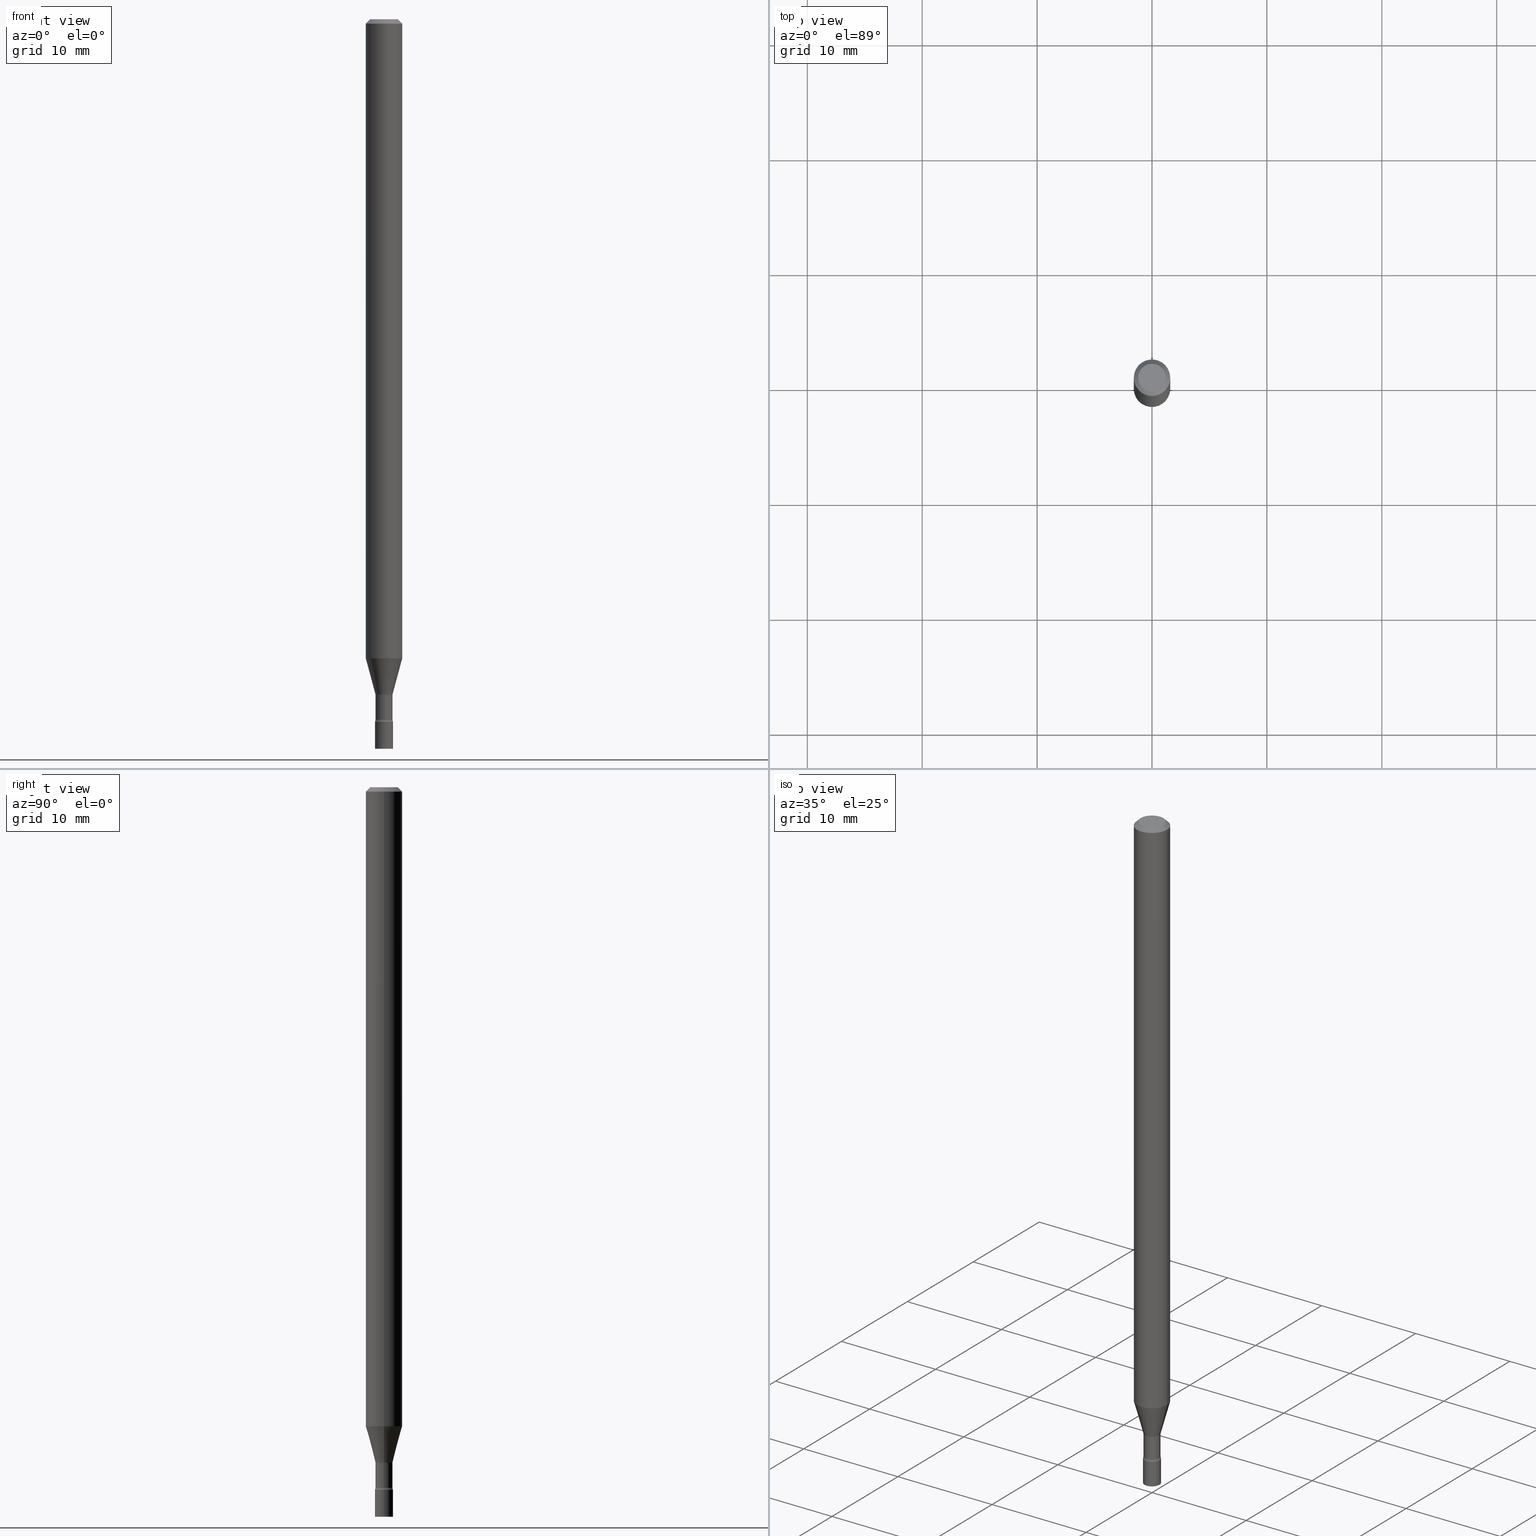
[diagram: canonical four-view strip — front | top / right | iso, engineering-drawing reading convention]
A machine part, canonical four-view strip (front | top / right | iso — engineering-drawing reading convention). The complete STEP part file that produces these views, byte-faithful:
ISO-10303-21;
HEADER;
FILE_DESCRIPTION (( 'STEP AP203' ),
    '1' );
FILE_NAME ('09690.STEP',
    '2024-03-09T00:51:56',
    ( '' ),
    ( '' ),
    'SwSTEP 2.0',
    'SolidWorks 2023',
    '' );
FILE_SCHEMA (( 'CONFIG_CONTROL_DESIGN' ));
ENDSEC;

DATA;
#1 = ORIENTED_EDGE ( 'NONE', *, *, #197, .T. ) ;
#2 = TOROIDAL_SURFACE ( 'NONE', #269, 0.04415000000000000174, 0.01499999999999999424 ) ;
#3 = EDGE_CURVE ( 'NONE', #322, #279, #195, .T. ) ;
#4 = ORIENTED_EDGE ( 'NONE', *, *, #159, .T. ) ;
#5 =( LENGTH_UNIT ( ) NAMED_UNIT ( * ) SI_UNIT ( $, .METRE. ) );
#6 = ORIENTED_EDGE ( 'NONE', *, *, #403, .F. ) ;
#7 = CARTESIAN_POINT ( 'NONE',  ( 0.03099999999999999978, -8.945175190116139274E-15, -2.500000000000000000 ) ) ;
#8 = CARTESIAN_POINT ( 'NONE',  ( 3.668203209277712094E-31, -5.237222008264728876E-17, -0.01500000000000003067 ) ) ;
#9 = CIRCLE ( 'NONE', #351, 0.06250000000000000000 ) ;
#10 = DIRECTION ( 'NONE',  ( 1.000000000000000000, -6.982962677686266711E-15, 4.876176775795935793E-29 ) ) ;
#11 = AXIS2_PLACEMENT_3D ( 'NONE', #433, #355, #459 ) ;
#12 = CARTESIAN_POINT ( 'NONE',  ( 0.06250000000000000000, -4.888073874380389458E-16, -0.01500000000000003067 ) ) ;
#13 = FACE_OUTER_BOUND ( 'NONE', #397, .T. ) ;
#14 = AXIS2_PLACEMENT_3D ( 'NONE', #320, #39, #398 ) ;
#15 = FACE_OUTER_BOUND ( 'NONE', #359, .T. ) ;
#16 = DIRECTION ( 'NONE',  ( -2.445468806185136597E-29, 3.491481338843145583E-15, 1.000000000000000000 ) ) ;
#17 = COORDINATED_UNIVERSAL_TIME_OFFSET ( 5, 0, .BEHIND. ) ;
#18 = LINE ( 'NONE', #449, #417 ) ;
#19 = FACE_OUTER_BOUND ( 'NONE', #85, .T. ) ;
#20 = EDGE_CURVE ( 'NONE', #44, #68, #303, .T. ) ;
#21 = FACE_OUTER_BOUND ( 'NONE', #487, .T. ) ;
#22 = PLANE ( 'NONE',  #11 ) ;
#23 = PERSON_AND_ORGANIZATION_ROLE ( 'design_supplier' ) ;
#24 = CARTESIAN_POINT ( 'NONE',  ( 5.654150090135328854E-29, -8.072627823669426720E-15, -2.312092501787272880 ) ) ;
#25 = ORIENTED_EDGE ( 'NONE', *, *, #147, .T. ) ;
#26 = CARTESIAN_POINT ( 'NONE',  ( -0.06250000000000000000, -7.200635243462433046E-15, -2.189536105567578161 ) ) ;
#27 = AXIS2_PLACEMENT_3D ( 'NONE', #215, #16, #447 ) ;
#28 = VECTOR ( 'NONE', #349, 39.37007874015748143 ) ;
#29 = CARTESIAN_POINT ( 'NONE',  ( -0.02915000000000000230, 2.071232074740692205E-16, -1.433869578809305304E-30 ) ) ;
#30 = ORIENTED_EDGE ( 'NONE', *, *, #341, .F. ) ;
#31 = EDGE_CURVE ( 'NONE', #518, #132, #506, .T. ) ;
#32 = DIRECTION ( 'NONE',  ( -2.445468806185136597E-29, 3.491481338843145583E-15, 1.000000000000000000 ) ) ;
#33 = ORIENTED_EDGE ( 'NONE', *, *, #309, .T. ) ;
#34 = AXIS2_PLACEMENT_3D ( 'NONE', #97, #135, #94 ) ;
#35 = VECTOR ( 'NONE', #388, 39.37007874015748143 ) ;
#36 = SECURITY_CLASSIFICATION ( '', '', #185 ) ;
#37 = VERTEX_POINT ( 'NONE', #56 ) ;
#38 = VERTEX_POINT ( 'NONE', #12 ) ;
#39 = DIRECTION ( 'NONE',  ( -2.438088387897960049E-29, 3.491481338843145188E-15, 1.000000000000000000 ) ) ;
#40 = ORIENTED_EDGE ( 'NONE', *, *, #3, .T. ) ;
#41 = ORIENTED_EDGE ( 'NONE', *, *, #297, .T. ) ;
#42 = APPLICATION_PROTOCOL_DEFINITION ( 'international standard', 'config_control_design', 1994, #304 ) ;
#43 = EDGE_CURVE ( 'NONE', #232, #322, #414, .T. ) ;
#44 = VERTEX_POINT ( 'NONE', #252 ) ;
#45 = EDGE_CURVE ( 'NONE', #513, #372, #113, .T. ) ;
#46 = DIRECTION ( 'NONE',  ( -2.445468806185136597E-29, 3.491481338843145583E-15, 1.000000000000000000 ) ) ;
#47 = ORIENTED_EDGE ( 'NONE', *, *, #516, .T. ) ;
#48 = AXIS2_PLACEMENT_3D ( 'NONE', #105, #260, #429 ) ;
#49 = DIRECTION ( 'NONE',  ( 1.000000000000000000, -6.982962677686270655E-15, 0.000000000000000000 ) ) ;
#50 = CARTESIAN_POINT ( 'NONE',  ( -0.03099999999999999978, 2.202682480856310560E-16, -1.524869877979020612E-30 ) ) ;
#51 = PERSON_AND_ORGANIZATION ( #470, #354 ) ;
#52 = DIRECTION ( 'NONE',  ( 1.000000000000000000, -6.982962677686262766E-15, 0.000000000000000000 ) ) ;
#53 = PLANE ( 'NONE',  #445 ) ;
#54 = DATE_AND_TIME ( #448, #115 ) ;
#55 = CARTESIAN_POINT ( 'NONE',  ( 5.886243416487624138E-29, -8.403995582595452657E-15, -2.407000000000000473 ) ) ;
#56 = CARTESIAN_POINT ( 'NONE',  ( -0.02966111260566397720, -7.531254093083343617E-15, -2.312092501787272880 ) ) ;
#57 = CIRCLE ( 'NONE', #34, 0.03099999999999999978 ) ;
#58 = CARTESIAN_POINT ( 'NONE',  ( 0.04415000000000000174, -8.687097199784551836E-15, -2.399783525791635341 ) ) ;
#59 = CC_DESIGN_APPROVAL ( #273, ( #36 ) ) ;
#60 = CYLINDRICAL_SURFACE ( 'NONE', #27, 0.03099999999999999978 ) ;
#61 = DIRECTION ( 'NONE',  ( 1.000000000000000000, -6.982962677686270655E-15, 0.000000000000000000 ) ) ;
#62 = ADVANCED_FACE ( 'NONE', ( #13 ), #412, .F. ) ;
#63 = DIRECTION ( 'NONE',  ( 1.000000000000000000, -6.982962677686259611E-15, 0.000000000000000000 ) ) ;
#64 = CARTESIAN_POINT ( 'NONE',  ( 5.663644098654001597E-29, -8.086182751661116518E-15, -2.315974787463810802 ) ) ;
#65 = AXIS2_PLACEMENT_3D ( 'NONE', #499, #139, #247 ) ;
#66 = CARTESIAN_POINT ( 'NONE',  ( 3.668203209277712094E-31, -5.237222008264728876E-17, -0.01500000000000003067 ) ) ;
#67 = CARTESIAN_POINT ( 'NONE',  ( -0.04749999999999999362, 3.578768372314209027E-16, -2.891391092787141902E-17 ) ) ;
#68 = VERTEX_POINT ( 'NONE', #125 ) ;
#69 = ADVANCED_FACE ( 'NONE', ( #86 ), #53, .T. ) ;
#70 = PERSON_AND_ORGANIZATION ( #470, #354 ) ;
#71 = DIRECTION ( 'NONE',  ( -1.000000000000000000, 6.982962677686266711E-15, 0.000000000000000000 ) ) ;
#72 = DIRECTION ( 'NONE',  ( -2.445468806185136597E-29, 3.491481338843145583E-15, 1.000000000000000000 ) ) ;
#73 = PERSON_AND_ORGANIZATION ( #470, #354 ) ;
#74 = AXIS2_PLACEMENT_3D ( 'NONE', #187, #230, #183 ) ;
#75 = CARTESIAN_POINT ( 'NONE',  ( 0.02966111260566397720, -8.279750265973427972E-15, -2.312092501787272880 ) ) ;
#76 = ADVANCED_FACE ( 'NONE', ( #380 ), #60, .T. ) ;
#77 = ORIENTED_EDGE ( 'NONE', *, *, #173, .F. ) ;
#78 = DIRECTION ( 'NONE',  ( -2.445468806185136597E-29, 3.491481338843145583E-15, 1.000000000000000000 ) ) ;
#79 = AXIS2_PLACEMENT_3D ( 'NONE', #24, #32, #233 ) ;
#80 = ORIENTED_EDGE ( 'NONE', *, *, #271, .F. ) ;
#81 = AXIS2_PLACEMENT_3D ( 'NONE', #223, #72, #179 ) ;
#82 = ORIENTED_EDGE ( 'NONE', *, *, #156, .T. ) ;
#83 = EDGE_CURVE ( 'NONE', #372, #371, #93, .T. ) ;
#84 = ORIENTED_EDGE ( 'NONE', *, *, #43, .F. ) ;
#85 = EDGE_LOOP ( 'NONE', ( #477, #478, #466, #442 ) ) ;
#86 = FACE_OUTER_BOUND ( 'NONE', #198, .T. ) ;
#87 = ORIENTED_EDGE ( 'NONE', *, *, #43, .T. ) ;
#88 = AXIS2_PLACEMENT_3D ( 'NONE', #291, #379, #63 ) ;
#89 = ORIENTED_EDGE ( 'NONE', *, *, #258, .T. ) ;
#90 = DIRECTION ( 'NONE',  ( -2.445468806185136597E-29, 3.491481338843145583E-15, 1.000000000000000000 ) ) ;
#91 = ADVANCED_FACE ( 'NONE', ( #377 ), #286, .F. ) ;
#92 = CARTESIAN_POINT ( 'NONE',  ( 5.886243416487624138E-29, -8.403995582595452657E-15, -2.407000000000000473 ) ) ;
#93 = LINE ( 'NONE', #208, #289 ) ;
#94 = DIRECTION ( 'NONE',  ( 1.000000000000000000, -6.982962677686270655E-15, 0.000000000000000000 ) ) ;
#95 = PERSON_AND_ORGANIZATION_ROLE ( 'creator' ) ;
#96 = DIRECTION ( 'NONE',  ( -2.445468806185136597E-29, 3.491481338843145583E-15, 1.000000000000000000 ) ) ;
#97 = CARTESIAN_POINT ( 'NONE',  ( 6.113672015462842613E-29, -8.728703347107864943E-15, -2.500000000000000000 ) ) ;
#98 = CONICAL_SURFACE ( 'NONE', #310, 0.02966111260566397720, 0.2617993877991501295 ) ;
#99 = EDGE_CURVE ( 'NONE', #38, #371, #427, .T. ) ;
#100 = PRODUCT_RELATED_PRODUCT_CATEGORY ( 'detail', '', ( #275 ) ) ;
#101 = LINE ( 'NONE', #140, #244 ) ;
#102 = LINE ( 'NONE', #312, #28 ) ;
#103 = DATE_AND_TIME ( #460, #151 ) ;
#104 = VECTOR ( 'NONE', #253, 39.37007874015747433 ) ;
#105 = CARTESIAN_POINT ( 'NONE',  ( 0.000000000000000000, 0.000000000000000000, 0.000000000000000000 ) ) ;
#106 = ADVANCED_FACE ( 'NONE', ( #453 ), #339, .T. ) ;
#107 = ORIENTED_EDGE ( 'NONE', *, *, #360, .T. ) ;
#108 = APPROVAL_PERSON_ORGANIZATION ( #428, #273, #503 ) ;
#109 = CARTESIAN_POINT ( 'NONE',  ( 5.868595753920427457E-29, -8.378799397564700895E-15, -2.399783525791634897 ) ) ;
#110 = CARTESIAN_POINT ( 'NONE',  ( 5.654150090135328854E-29, -8.072627823669426720E-15, -2.312092501787272880 ) ) ;
#111 = PERSON_AND_ORGANIZATION_ROLE ( 'creator' ) ;
#112 = DIRECTION ( 'NONE',  ( -2.445468806185136597E-29, 3.491481338843145583E-15, 1.000000000000000000 ) ) ;
#113 = CIRCLE ( 'NONE', #254, 0.06250000000000000000 ) ;
#114 = EDGE_CURVE ( 'NONE', #279, #322, #316, .T. ) ;
#115 = LOCAL_TIME ( 19, 51, 56.00000000000000000, #249 ) ;
#116 = ORIENTED_EDGE ( 'NONE', *, *, #3, .F. ) ;
#117 = ORIENTED_EDGE ( 'NONE', *, *, #45, .T. ) ;
#118 = ORIENTED_EDGE ( 'NONE', *, *, #516, .F. ) ;
#119 = CIRCLE ( 'NONE', #149, 0.02966111260566397720 ) ;
#120 = FACE_OUTER_BOUND ( 'NONE', #346, .T. ) ;
#121 = APPROVAL_PERSON_ORGANIZATION ( #152, #161, #262 ) ;
#122 = ORIENTED_EDGE ( 'NONE', *, *, #309, .F. ) ;
#123 = CONICAL_SURFACE ( 'NONE', #79, 0.02966111260566397720, 0.2617993877991501295 ) ;
#124 = ORIENTED_EDGE ( 'NONE', *, *, #45, .F. ) ;
#125 = CARTESIAN_POINT ( 'NONE',  ( 0.02915000000000000577, -8.582352759619256888E-15, -2.399783525791634897 ) ) ;
#126 =( CONVERSION_BASED_UNIT ( 'INCH', #441 ) LENGTH_UNIT ( ) NAMED_UNIT ( #376 ) );
#127 = EDGE_LOOP ( 'NONE', ( #117, #160, #238, #30 ) ) ;
#128 = CARTESIAN_POINT ( 'NONE',  ( 5.868595753920427457E-29, -8.378799397564700895E-15, -2.399783525791634897 ) ) ;
#129 = PLANE ( 'NONE',  #14 ) ;
#130 = DIRECTION ( 'NONE',  ( 0.7071067811865475727, -7.319954787623256045E-15, -0.7071067811865474617 ) ) ;
#131 = CIRCLE ( 'NONE', #196, 0.01500000000000001853 ) ;
#132 = VERTEX_POINT ( 'NONE', #415 ) ;
#133 = DIRECTION ( 'NONE',  ( 0.000000000000000000, 0.000000000000000000, 1.000000000000000000 ) ) ;
#134 = AXIS2_PLACEMENT_3D ( 'NONE', #170, #280, #333 ) ;
#135 = DIRECTION ( 'NONE',  ( -2.445468806185136597E-29, 3.491481338843145583E-15, 1.000000000000000000 ) ) ;
#136 = CARTESIAN_POINT ( 'NONE',  ( 5.654150090135328854E-29, -8.072627823669426720E-15, -2.312092501787272880 ) ) ;
#137 = CARTESIAN_POINT ( 'NONE',  ( 5.354442246181599282E-29, -7.644724453312494084E-15, -2.189536105567578161 ) ) ;
#138 = DIRECTION ( 'NONE',  ( -2.445468806185136597E-29, 3.491481338843145583E-15, 1.000000000000000000 ) ) ;
#139 = DIRECTION ( 'NONE',  ( -2.445468806185136597E-29, 3.491481338843145583E-15, 1.000000000000000000 ) ) ;
#140 = CARTESIAN_POINT ( 'NONE',  ( 0.03099999999999999978, -2.164718430082742572E-16, 1.511614800496739984E-30 ) ) ;
#141 = AXIS2_PLACEMENT_3D ( 'NONE', #154, #395, #267 ) ;
#142 = PERSON_AND_ORGANIZATION ( #470, #354 ) ;
#143 = CARTESIAN_POINT ( 'NONE',  ( -0.03099999999999999978, -8.346081216766027547E-15, -2.407000000000000473 ) ) ;
#144 = DATE_TIME_ROLE ( 'creation_date' ) ;
#145 = EDGE_CURVE ( 'NONE', #37, #406, #119, .T. ) ;
#146 = CARTESIAN_POINT ( 'NONE',  ( 7.070806723891919892E-46, -1.009523804376275404E-31, -2.891391092786900929E-17 ) ) ;
#147 = EDGE_CURVE ( 'NONE', #132, #518, #261, .T. ) ;
#148 = SHAPE_DEFINITION_REPRESENTATION ( #270, #299 ) ;
#149 = AXIS2_PLACEMENT_3D ( 'NONE', #136, #96, #250 ) ;
#150 = DIRECTION ( 'NONE',  ( 1.000000000000000000, -6.982962677686269077E-15, 0.000000000000000000 ) ) ;
#151 = LOCAL_TIME ( 19, 51, 56.00000000000000000, #347 ) ;
#152 = PERSON_AND_ORGANIZATION ( #470, #354 ) ;
#153 = CIRCLE ( 'NONE', #180, 0.04749999999999999362 ) ;
#154 = CARTESIAN_POINT ( 'NONE',  ( 5.663644098654001597E-29, -8.086182751661116518E-15, -2.315974787463810802 ) ) ;
#155 = DIRECTION ( 'NONE',  ( -2.445468806185136877E-29, 3.491481338843145188E-15, 1.000000000000000000 ) ) ;
#156 = EDGE_CURVE ( 'NONE', #37, #184, #131, .T. ) ;
#157 = ORIENTED_EDGE ( 'NONE', *, *, #145, .T. ) ;
#158 = ORIENTED_EDGE ( 'NONE', *, *, #425, .T. ) ;
#159 = EDGE_CURVE ( 'NONE', #406, #365, #426, .T. ) ;
#160 = ORIENTED_EDGE ( 'NONE', *, *, #83, .T. ) ;
#161 = APPROVAL ( #431, 'UNSPECIFIED' ) ;
#162 = ORIENTED_EDGE ( 'NONE', *, *, #145, .F. ) ;
#163 = ORIENTED_EDGE ( 'NONE', *, *, #456, .T. ) ;
#164 = DIRECTION ( 'NONE',  ( 1.000000000000000000, -6.982962677686270655E-15, 0.000000000000000000 ) ) ;
#165 = EDGE_LOOP ( 'NONE', ( #122, #458, #163, #6 ) ) ;
#166 = CARTESIAN_POINT ( 'NONE',  ( 0.000000000000000000, 0.000000000000000000, 0.000000000000000000 ) ) ;
#167 = ADVANCED_FACE ( 'NONE', ( #15 ), #421, .T. ) ;
#168 = DIRECTION ( 'NONE',  ( -0.2588190451025214611, 5.211531920934551042E-15, 0.9659258262890682012 ) ) ;
#169 = AXIS2_PLACEMENT_3D ( 'NONE', #285, #500, #416 ) ;
#170 = CARTESIAN_POINT ( 'NONE',  ( 5.663644098654001597E-29, -8.086182751661116518E-15, -2.315974787463810802 ) ) ;
#171 = AXIS2_PLACEMENT_3D ( 'NONE', #109, #394, #435 ) ;
#172 = CIRCLE ( 'NONE', #295, 0.03099999999999999978 ) ;
#173 = EDGE_CURVE ( 'NONE', #232, #243, #57, .T. ) ;
#174 = DIRECTION ( 'NONE',  ( 2.445468806185136597E-29, -3.491481338843145583E-15, -1.000000000000000000 ) ) ;
#175 = CC_DESIGN_PERSON_AND_ORGANIZATION_ASSIGNMENT ( #70, #111, ( #277 ) ) ;
#176 = DIRECTION ( 'NONE',  ( -2.445468806185136597E-29, 3.491481338843145583E-15, 1.000000000000000000 ) ) ;
#177 = CARTESIAN_POINT ( 'NONE',  ( 3.668203209277712094E-31, -5.237222008264728876E-17, -0.01500000000000003067 ) ) ;
#178 = AXIS2_PLACEMENT_3D ( 'NONE', #245, #411, #49 ) ;
#179 = DIRECTION ( 'NONE',  ( 1.000000000000000000, -6.982962677686266711E-15, 4.876176775795936353E-29 ) ) ;
#180 = AXIS2_PLACEMENT_3D ( 'NONE', #146, #501, #457 ) ;
#181 = CALENDAR_DATE ( 2024, 8, 3 ) ;
#182 = CARTESIAN_POINT ( 'NONE',  ( 5.868595753920427457E-29, -8.378799397564702473E-15, -2.399783525791635341 ) ) ;
#183 = DIRECTION ( 'NONE',  ( 1.000000000000000000, -6.982962677686266711E-15, 4.876176775795935793E-29 ) ) ;
#184 = VERTEX_POINT ( 'NONE', #378 ) ;
#185 = SECURITY_CLASSIFICATION_LEVEL ( 'unclassified' ) ;
#186 = AXIS2_PLACEMENT_3D ( 'NONE', #8, #176, #294 ) ;
#187 = CARTESIAN_POINT ( 'NONE',  ( 0.000000000000000000, 0.000000000000000000, 0.000000000000000000 ) ) ;
#188 = FACE_OUTER_BOUND ( 'NONE', #272, .T. ) ;
#189 = LOCAL_TIME ( 19, 51, 56.00000000000000000, #17 ) ;
#190 = CARTESIAN_POINT ( 'NONE',  ( 0.06250000000000000000, -4.364351673553916694E-16, 3.047610484872459871E-30 ) ) ;
#191 = EDGE_CURVE ( 'NONE', #485, #371, #293, .T. ) ;
#192 = CC_DESIGN_PERSON_AND_ORGANIZATION_ASSIGNMENT ( #393, #23, ( #277 ) ) ;
#193 = UNCERTAINTY_MEASURE_WITH_UNIT (LENGTH_MEASURE( 1.000000000000000082E-05 ), #126, 'distance_accuracy_value', 'NONE');
#194 = ORIENTED_EDGE ( 'NONE', *, *, #341, .T. ) ;
#195 = CIRCLE ( 'NONE', #399, 0.03099999999999999978 ) ;
#196 = AXIS2_PLACEMENT_3D ( 'NONE', #210, #444, #338 ) ;
#197 = EDGE_CURVE ( 'NONE', #462, #485, #463, .T. ) ;
#198 = EDGE_LOOP ( 'NONE', ( #505, #77 ) ) ;
#199 = ORIENTED_EDGE ( 'NONE', *, *, #251, .T. ) ;
#200 = CARTESIAN_POINT ( 'NONE',  ( 5.654150090135328854E-29, -8.072627823669426720E-15, -2.312092501787272880 ) ) ;
#201 = EDGE_LOOP ( 'NONE', ( #274, #268, #25, #374 ) ) ;
#202 = ORIENTED_EDGE ( 'NONE', *, *, #191, .T. ) ;
#203 = CIRCLE ( 'NONE', #467, 0.06250000000000000000 ) ;
#204 = ORIENTED_EDGE ( 'NONE', *, *, #173, .T. ) ;
#205 = EDGE_CURVE ( 'NONE', #372, #513, #9, .T. ) ;
#206 = DIRECTION ( 'NONE',  ( 2.438088387897960049E-29, -3.491481338843145188E-15, -1.000000000000000000 ) ) ;
#207 = DIRECTION ( 'NONE',  ( 1.000000000000000000, -6.982962677686270655E-15, 0.000000000000000000 ) ) ;
#208 = CARTESIAN_POINT ( 'NONE',  ( -0.06250000000000000000, 4.440892098500626162E-16, -3.074334431409316114E-30 ) ) ;
#209 = PERSON_AND_ORGANIZATION ( #470, #354 ) ;
#210 = CARTESIAN_POINT ( 'NONE',  ( -0.04414999999999999480, -7.772478133823032914E-15, -2.315974787463810802 ) ) ;
#211 = AXIS2_PLACEMENT_3D ( 'NONE', #128, #283, #443 ) ;
#212 = CIRCLE ( 'NONE', #509, 0.02914999999999999883 ) ;
#213 = CARTESIAN_POINT ( 'NONE',  ( 7.070806723891919892E-46, -1.009523804376275404E-31, -2.891391092786900929E-17 ) ) ;
#214 = AXIS2_PLACEMENT_3D ( 'NONE', #263, #352, #71 ) ;
#215 = CARTESIAN_POINT ( 'NONE',  ( 0.000000000000000000, 0.000000000000000000, 0.000000000000000000 ) ) ;
#216 = APPROVAL_ROLE ( '' ) ;
#217 = CARTESIAN_POINT ( 'NONE',  ( 5.354442246181599282E-29, -7.644724453312494084E-15, -2.189536105567578161 ) ) ;
#218 = DIRECTION ( 'NONE',  ( -2.445468806185136597E-29, 3.491481338843145583E-15, 1.000000000000000000 ) ) ;
#219 = CIRCLE ( 'NONE', #385, 0.01499999999999999424 ) ;
#220 = FACE_OUTER_BOUND ( 'NONE', #127, .T. ) ;
#221 = AXIS2_PLACEMENT_3D ( 'NONE', #213, #423, #340 ) ;
#222 = DIRECTION ( 'NONE',  ( -2.445468806185136597E-29, 3.491481338843145583E-15, 1.000000000000000000 ) ) ;
#223 = CARTESIAN_POINT ( 'NONE',  ( 0.000000000000000000, 0.000000000000000000, 0.000000000000000000 ) ) ;
#224 = DATE_AND_TIME ( #314, #307 ) ;
#225 = LINE ( 'NONE', #190, #370 ) ;
#226 = APPROVAL_DATE_TIME ( #103, #273 ) ;
#227 = ADVANCED_FACE ( 'NONE', ( #450 ), #332, .T. ) ;
#228 = DIRECTION ( 'NONE',  ( 1.000000000000000000, -6.982962677686266711E-15, 0.000000000000000000 ) ) ;
#229 = CC_DESIGN_DATE_AND_TIME_ASSIGNMENT ( #512, #144, ( #264 ) ) ;
#230 = DIRECTION ( 'NONE',  ( -2.445468806185136597E-29, 3.491481338843145583E-15, 1.000000000000000000 ) ) ;
#231 = EDGE_CURVE ( 'NONE', #68, #518, #219, .T. ) ;
#232 = VERTEX_POINT ( 'NONE', #498 ) ;
#233 = DIRECTION ( 'NONE',  ( 1.000000000000000000, -6.982962677686269077E-15, 0.000000000000000000 ) ) ;
#234 = ORIENTED_EDGE ( 'NONE', *, *, #159, .F. ) ;
#235 = MANIFOLD_SOLID_BREP ( 'Body-Move/Copy2[2]', #437 ) ;
#236 = AXIS2_PLACEMENT_3D ( 'NONE', #497, #206, #292 ) ;
#237 =( GEOMETRIC_REPRESENTATION_CONTEXT ( 3 ) GLOBAL_UNCERTAINTY_ASSIGNED_CONTEXT ( ( #193 ) ) GLOBAL_UNIT_ASSIGNED_CONTEXT ( ( #126, #276, #284 ) ) REPRESENTATION_CONTEXT ( 'NONE', 'WORKASPACE' ) );
#238 = ORIENTED_EDGE ( 'NONE', *, *, #99, .F. ) ;
#239 = CIRCLE ( 'NONE', #141, 0.02914999999999999883 ) ;
#240 = ORIENTED_EDGE ( 'NONE', *, *, #205, .F. ) ;
#241 = ORIENTED_EDGE ( 'NONE', *, *, #191, .F. ) ;
#242 = ORIENTED_EDGE ( 'NONE', *, *, #114, .F. ) ;
#243 = VERTEX_POINT ( 'NONE', #7 ) ;
#244 = VECTOR ( 'NONE', #455, 39.37007874015748143 ) ;
#245 = CARTESIAN_POINT ( 'NONE',  ( 5.886243416487624138E-29, -8.403995582595452657E-15, -2.407000000000000473 ) ) ;
#246 = DIRECTION ( 'NONE',  ( 1.000000000000000000, -6.982962677686262766E-15, 0.000000000000000000 ) ) ;
#247 = DIRECTION ( 'NONE',  ( 1.000000000000000000, -6.982962677686266711E-15, 4.876176775795935232E-29 ) ) ;
#248 = EDGE_LOOP ( 'NONE', ( #327, #41, #436, #241 ) ) ;
#249 = COORDINATED_UNIVERSAL_TIME_OFFSET ( 5, 0, .BEHIND. ) ;
#250 = DIRECTION ( 'NONE',  ( 1.000000000000000000, -6.982962677686269077E-15, 0.000000000000000000 ) ) ;
#251 = EDGE_CURVE ( 'NONE', #37, #372, #18, .T. ) ;
#252 = CARTESIAN_POINT ( 'NONE',  ( -0.02915000000000000577, -8.177701762300226909E-15, -2.399783525791634897 ) ) ;
#253 = DIRECTION ( 'NONE',  ( 0.2588190451025214611, 1.565188264969621573E-15, 0.9659258262890682012 ) ) ;
#254 = AXIS2_PLACEMENT_3D ( 'NONE', #137, #90, #246 ) ;
#255 = CARTESIAN_POINT ( 'NONE',  ( 0.02966111260566397720, -8.279750265973427972E-15, -2.312092501787272880 ) ) ;
#256 = CC_DESIGN_APPROVAL ( #161, ( #277 ) ) ;
#257 = LINE ( 'NONE', #328, #318 ) ;
#258 = EDGE_CURVE ( 'NONE', #243, #279, #101, .T. ) ;
#259 = DIRECTION ( 'NONE',  ( 7.105427357601001859E-15, 1.000000000000000000, -3.491481338843145583E-15 ) ) ;
#260 = DIRECTION ( 'NONE',  ( -2.445468806185136597E-29, 3.491481338843145583E-15, 1.000000000000000000 ) ) ;
#261 = CIRCLE ( 'NONE', #169, 0.03099999999999999978 ) ;
#262 = APPROVAL_ROLE ( '' ) ;
#263 = CARTESIAN_POINT ( 'NONE',  ( 3.668203209277712094E-31, -5.237222008264728876E-17, -0.01500000000000003067 ) ) ;
#264 = PRODUCT_DEFINITION ( 'UNKNOWN', '', #277, #392 ) ;
#265 = DIRECTION ( 'NONE',  ( 1.000000000000000000, -6.982962677686268288E-15, 4.883557194083113462E-29 ) ) ;
#266 = CALENDAR_DATE ( 2024, 8, 3 ) ;
#267 = DIRECTION ( 'NONE',  ( 1.000000000000000000, -6.982962677686268288E-15, 0.000000000000000000 ) ) ;
#268 = ORIENTED_EDGE ( 'NONE', *, *, #383, .T. ) ;
#269 = AXIS2_PLACEMENT_3D ( 'NONE', #182, #348, #461 ) ;
#270 = PRODUCT_DEFINITION_SHAPE ( 'NONE', 'NONE',  #264 ) ;
#271 = EDGE_CURVE ( 'NONE', #406, #513, #452, .T. ) ;
#272 = EDGE_LOOP ( 'NONE', ( #475, #118, #4, #405 ) ) ;
#273 = APPROVAL ( #311, 'UNSPECIFIED' ) ;
#274 = ORIENTED_EDGE ( 'NONE', *, *, #20, .F. ) ;
#275 = PRODUCT ( '09690', '09690', '', ( #419 ) ) ;
#276 =( NAMED_UNIT ( * ) PLANE_ANGLE_UNIT ( ) SI_UNIT ( $, .RADIAN. ) );
#277 = PRODUCT_DEFINITION_FORMATION_WITH_SPECIFIED_SOURCE ( 'ANY', '', #275, .NOT_KNOWN. ) ;
#278 = ORIENTED_EDGE ( 'NONE', *, *, #114, .T. ) ;
#279 = VERTEX_POINT ( 'NONE', #384 ) ;
#280 = DIRECTION ( 'NONE',  ( -2.445468806185136597E-29, 3.491481338843145583E-15, 1.000000000000000000 ) ) ;
#281 = CC_DESIGN_PERSON_AND_ORGANIZATION_ASSIGNMENT ( #209, #343, ( #275 ) ) ;
#282 = ORIENTED_EDGE ( 'NONE', *, *, #251, .F. ) ;
#283 = DIRECTION ( 'NONE',  ( -2.445468806185136597E-29, 3.491481338843145583E-15, 1.000000000000000000 ) ) ;
#284 =( NAMED_UNIT ( * ) SI_UNIT ( $, .STERADIAN. ) SOLID_ANGLE_UNIT ( ) );
#285 = CARTESIAN_POINT ( 'NONE',  ( 5.886243416487624138E-29, -8.403995582595452657E-15, -2.407000000000000473 ) ) ;
#286 = TOROIDAL_SURFACE ( 'NONE', #134, 0.04414999999999999480, 0.01500000000000001853 ) ;
#287 = CARTESIAN_POINT ( 'NONE',  ( 2.164718430083353692E-16, 0.03099999999999127065, -2.500000000000000000 ) ) ;
#288 = APPLICATION_PROTOCOL_DEFINITION ( 'international standard', 'config_control_design', 1994, #408 ) ;
#289 = VECTOR ( 'NONE', #325, 39.37007874015748143 ) ;
#290 = CARTESIAN_POINT ( 'NONE',  ( 5.868595753920427457E-29, -8.378799397564702473E-15, -2.399783525791635341 ) ) ;
#291 = CARTESIAN_POINT ( 'NONE',  ( 0.04414999999999999480, -8.394480553880965881E-15, -2.315974787463810802 ) ) ;
#292 = DIRECTION ( 'NONE',  ( -1.000000000000000000, 6.982962677686265922E-15, -4.876176775795935793E-29 ) ) ;
#293 = LINE ( 'NONE', #491, #517 ) ;
#294 = DIRECTION ( 'NONE',  ( 1.000000000000000000, -6.982962677686266711E-15, 0.000000000000000000 ) ) ;
#295 = AXIS2_PLACEMENT_3D ( 'NONE', #471, #357, #434 ) ;
#296 = DIRECTION ( 'NONE',  ( -2.445468806185136597E-29, 3.491481338843145583E-15, 1.000000000000000000 ) ) ;
#297 = EDGE_CURVE ( 'NONE', #462, #38, #257, .T. ) ;
#298 = FACE_OUTER_BOUND ( 'NONE', #400, .T. ) ;
#299 = ADVANCED_BREP_SHAPE_REPRESENTATION ( '09690', ( #402, #235, #335 ), #237 ) ;
#300 = DATE_TIME_ROLE ( 'classification_date' ) ;
#301 = CYLINDRICAL_SURFACE ( 'NONE', #48, 0.02915000000000000230 ) ;
#302 = ORIENTED_EDGE ( 'NONE', *, *, #83, .F. ) ;
#303 = CIRCLE ( 'NONE', #211, 0.02915000000000000577 ) ;
#304 = APPLICATION_CONTEXT ( 'configuration controlled 3d designs of mechanical parts and assemblies' ) ;
#305 = DIRECTION ( 'NONE',  ( 1.000000000000000000, -6.982962677686266711E-15, 4.883557194083112901E-29 ) ) ;
#306 = FACE_OUTER_BOUND ( 'NONE', #446, .T. ) ;
#307 = LOCAL_TIME ( 19, 51, 56.00000000000000000, #511 ) ;
#308 = ADVANCED_FACE ( 'NONE', ( #331 ), #386, .F. ) ;
#309 = EDGE_CURVE ( 'NONE', #44, #184, #492, .T. ) ;
#310 = AXIS2_PLACEMENT_3D ( 'NONE', #110, #465, #150 ) ;
#311 = APPROVAL_STATUS ( 'not_yet_approved' ) ;
#312 = CARTESIAN_POINT ( 'NONE',  ( 0.02915000000000000230, -2.035533620545546870E-16, 1.421405530144515533E-30 ) ) ;
#313 = CARTESIAN_POINT ( 'NONE',  ( 5.663644098654001597E-29, -8.086182751661116518E-15, -2.315974787463810802 ) ) ;
#314 = CALENDAR_DATE ( 2024, 8, 3 ) ;
#315 = CYLINDRICAL_SURFACE ( 'NONE', #74, 0.06250000000000000000 ) ;
#316 = CIRCLE ( 'NONE', #514, 0.03099999999999999978 ) ;
#317 = ORIENTED_EDGE ( 'NONE', *, *, #396, .T. ) ;
#318 = VECTOR ( 'NONE', #130, 39.37007874015748143 ) ;
#319 = EDGE_LOOP ( 'NONE', ( #107, #87, #242, #369 ) ) ;
#320 = CARTESIAN_POINT ( 'NONE',  ( 5.886243416487624138E-29, -8.403995582595452657E-15, -2.407000000000000473 ) ) ;
#321 = ORIENTED_EDGE ( 'NONE', *, *, #366, .T. ) ;
#322 = VERTEX_POINT ( 'NONE', #143 ) ;
#323 = ADVANCED_FACE ( 'NONE', ( #220 ), #315, .T. ) ;
#324 = AXIS2_PLACEMENT_3D ( 'NONE', #200, #78, #480 ) ;
#325 = DIRECTION ( 'NONE',  ( -2.445468806185136877E-29, 3.491481338843145188E-15, 1.000000000000000000 ) ) ;
#326 = ORIENTED_EDGE ( 'NONE', *, *, #396, .F. ) ;
#327 = ORIENTED_EDGE ( 'NONE', *, *, #197, .F. ) ;
#328 = CARTESIAN_POINT ( 'NONE',  ( 0.06250000000000000000, -4.811533449433680977E-16, -0.01500000000000003067 ) ) ;
#329 = ORIENTED_EDGE ( 'NONE', *, *, #205, .T. ) ;
#330 = ADVANCED_FACE ( 'NONE', ( #19 ), #2, .F. ) ;
#331 = FACE_OUTER_BOUND ( 'NONE', #201, .T. ) ;
#332 = CONICAL_SURFACE ( 'NONE', #472, 0.06250000000000000000, 0.7853981633974483900 ) ;
#333 = DIRECTION ( 'NONE',  ( 1.000000000000000000, -6.982962677686266711E-15, 4.883557194083112901E-29 ) ) ;
#334 = APPROVAL_STATUS ( 'not_yet_approved' ) ;
#335 = AXIS2_PLACEMENT_3D ( 'NONE', #368, #133, #337 ) ;
#336 = DIRECTION ( 'NONE',  ( -2.445468806185136597E-29, 3.491481338843145583E-15, 1.000000000000000000 ) ) ;
#337 = DIRECTION ( 'NONE',  ( 1.000000000000000000, 0.000000000000000000, 0.000000000000000000 ) ) ;
#338 = DIRECTION ( 'NONE',  ( -1.000000000000000000, 7.105427357600982137E-15, 0.000000000000000000 ) ) ;
#339 = CYLINDRICAL_SURFACE ( 'NONE', #65, 0.03099999999999999978 ) ;
#340 = DIRECTION ( 'NONE',  ( 1.000000000000000000, -6.982962677686267499E-15, 4.876681293081646444E-29 ) ) ;
#341 = EDGE_CURVE ( 'NONE', #513, #38, #225, .T. ) ;
#342 = ADVANCED_FACE ( 'NONE', ( #306 ), #98, .T. ) ;
#343 = PERSON_AND_ORGANIZATION_ROLE ( 'design_owner' ) ;
#344 = CIRCLE ( 'NONE', #324, 0.02966111260566397720 ) ;
#345 = CARTESIAN_POINT ( 'NONE',  ( -0.06250000000000000000, -3.404459126847508557E-15, -0.01500000000000003067 ) ) ;
#346 = EDGE_LOOP ( 'NONE', ( #391, #519 ) ) ;
#347 = COORDINATED_UNIVERSAL_TIME_OFFSET ( 5, 0, .BEHIND. ) ;
#348 = DIRECTION ( 'NONE',  ( -2.445468806185136597E-29, 3.491481338843145583E-15, 1.000000000000000000 ) ) ;
#349 = DIRECTION ( 'NONE',  ( -2.445468806185136877E-29, 3.491481338843145188E-15, 1.000000000000000000 ) ) ;
#350 = ORIENTED_EDGE ( 'NONE', *, *, #456, .F. ) ;
#351 = AXIS2_PLACEMENT_3D ( 'NONE', #217, #296, #52 ) ;
#352 = DIRECTION ( 'NONE',  ( 2.445468806185136597E-29, -3.491481338843145583E-15, -1.000000000000000000 ) ) ;
#353 = CC_DESIGN_SECURITY_CLASSIFICATION ( #36, ( #277 ) ) ;
#354 = ORGANIZATION ( 'UNSPECIFIED', 'UNSPECIFIED', '' ) ;
#355 = DIRECTION ( 'NONE',  ( -2.438088387897960049E-29, 3.491481338843145188E-15, 1.000000000000000000 ) ) ;
#356 = COORDINATED_UNIVERSAL_TIME_OFFSET ( 5, 0, .BEHIND. ) ;
#357 = DIRECTION ( 'NONE',  ( -2.445468806185136597E-29, 3.491481338843145583E-15, 1.000000000000000000 ) ) ;
#358 = APPROVAL_DATE_TIME ( #473, #161 ) ;
#359 = EDGE_LOOP ( 'NONE', ( #302, #329, #194, #326 ) ) ;
#360 = EDGE_CURVE ( 'NONE', #243, #232, #172, .T. ) ;
#361 = DIRECTION ( 'NONE',  ( 1.000000000000000000, -6.982962677686268288E-15, 0.000000000000000000 ) ) ;
#362 = CLOSED_SHELL ( 'NONE', ( #106, #515, #76, #69 ) ) ;
#363 = EDGE_LOOP ( 'NONE', ( #282, #157, #440, #240 ) ) ;
#364 = CARTESIAN_POINT ( 'NONE',  ( 0.03099999999999999978, -8.620467425603726988E-15, -2.407000000000000473 ) ) ;
#365 = VERTEX_POINT ( 'NONE', #432 ) ;
#366 = EDGE_CURVE ( 'NONE', #68, #44, #438, .T. ) ;
#367 = EDGE_LOOP ( 'NONE', ( #278, #40 ) ) ;
#368 = CARTESIAN_POINT ( 'NONE',  ( 0.000000000000000000, 0.000000000000000000, 0.000000000000000000 ) ) ;
#369 = ORIENTED_EDGE ( 'NONE', *, *, #258, .F. ) ;
#370 = VECTOR ( 'NONE', #155, 39.37007874015748143 ) ;
#371 = VERTEX_POINT ( 'NONE', #345 ) ;
#372 = VERTEX_POINT ( 'NONE', #26 ) ;
#373 = ADVANCED_FACE ( 'NONE', ( #21 ), #502, .T. ) ;
#374 = ORIENTED_EDGE ( 'NONE', *, *, #231, .F. ) ;
#375 = ADVANCED_FACE ( 'NONE', ( #298 ), #439, .T. ) ;
#376 = DIMENSIONAL_EXPONENTS ( 1.000000000000000000, 0.000000000000000000, 0.000000000000000000, 0.000000000000000000, 0.000000000000000000, 0.000000000000000000, 0.000000000000000000 ) ;
#377 = FACE_OUTER_BOUND ( 'NONE', #404, .T. ) ;
#378 = CARTESIAN_POINT ( 'NONE',  ( -0.02914999999999999883, -8.025367867138840225E-15, -2.315974787463810802 ) ) ;
#379 = DIRECTION ( 'NONE',  ( -6.982962677686266711E-15, -1.000000000000000000, 3.491481338843145583E-15 ) ) ;
#380 = FACE_OUTER_BOUND ( 'NONE', #409, .T. ) ;
#381 = APPROVAL_DATE_TIME ( #54, #476 ) ;
#382 = DIRECTION ( 'NONE',  ( -6.982962677686266711E-15, -1.000000000000000000, 3.491481338843145583E-15 ) ) ;
#383 = EDGE_CURVE ( 'NONE', #44, #132, #464, .T. ) ;
#384 = CARTESIAN_POINT ( 'NONE',  ( 0.03099999999999999978, -8.620467425603726988E-15, -2.407000000000000473 ) ) ;
#385 = AXIS2_PLACEMENT_3D ( 'NONE', #58, #382, #207 ) ;
#386 = TOROIDAL_SURFACE ( 'NONE', #493, 0.04415000000000000174, 0.01499999999999999424 ) ;
#387 = DIRECTION ( 'NONE',  ( -2.445468806185136597E-29, 3.491481338843145583E-15, 1.000000000000000000 ) ) ;
#388 = DIRECTION ( 'NONE',  ( -2.445468806185136877E-29, 3.491481338843145188E-15, 1.000000000000000000 ) ) ;
#389 = PERSON_AND_ORGANIZATION_ROLE ( 'classification_officer' ) ;
#390 = FACE_OUTER_BOUND ( 'NONE', #363, .T. ) ;
#391 = ORIENTED_EDGE ( 'NONE', *, *, #31, .F. ) ;
#392 = DESIGN_CONTEXT ( 'detailed design', #408, 'design' ) ;
#393 = PERSON_AND_ORGANIZATION ( #470, #354 ) ;
#394 = DIRECTION ( 'NONE',  ( -2.445468806185136597E-29, 3.491481338843145583E-15, 1.000000000000000000 ) ) ;
#395 = DIRECTION ( 'NONE',  ( -2.445468806185136597E-29, 3.491481338843145583E-15, 1.000000000000000000 ) ) ;
#396 = EDGE_CURVE ( 'NONE', #371, #38, #203, .T. ) ;
#397 = EDGE_LOOP ( 'NONE', ( #158, #1 ) ) ;
#398 = DIRECTION ( 'NONE',  ( 1.000000000000000000, -6.982962677686265922E-15, 4.876176775795935793E-29 ) ) ;
#399 = AXIS2_PLACEMENT_3D ( 'NONE', #92, #46, #164 ) ;
#400 = EDGE_LOOP ( 'NONE', ( #482, #479, #202, #317 ) ) ;
#401 = AXIS2_PLACEMENT_3D ( 'NONE', #468, #259, #507 ) ;
#402 = MANIFOLD_SOLID_BREP ( 'Body-Move/Copy2[1]', #362 ) ;
#403 = EDGE_CURVE ( 'NONE', #184, #365, #239, .T. ) ;
#404 = EDGE_LOOP ( 'NONE', ( #162, #82, #430, #234 ) ) ;
#405 = ORIENTED_EDGE ( 'NONE', *, *, #510, .T. ) ;
#406 = VERTEX_POINT ( 'NONE', #75 ) ;
#407 = AXIS2_PLACEMENT_3D ( 'NONE', #166, #218, #10 ) ;
#408 = APPLICATION_CONTEXT ( 'configuration controlled 3d designs of mechanical parts and assemblies' ) ;
#409 = EDGE_LOOP ( 'NONE', ( #84, #204, #89, #116 ) ) ;
#410 = CC_DESIGN_APPROVAL ( #476, ( #264 ) ) ;
#411 = DIRECTION ( 'NONE',  ( -2.445468806185136597E-29, 3.491481338843145583E-15, 1.000000000000000000 ) ) ;
#412 = PLANE ( 'NONE',  #236 ) ;
#413 = DIRECTION ( 'NONE',  ( -0.7071067811865475727, 2.468850131082257455E-15, -0.7071067811865474617 ) ) ;
#414 = LINE ( 'NONE', #50, #481 ) ;
#415 = CARTESIAN_POINT ( 'NONE',  ( -0.03099999999999999978, -8.183727334509820615E-15, -2.407000000000000473 ) ) ;
#416 = DIRECTION ( 'NONE',  ( 1.000000000000000000, -6.982962677686270655E-15, 0.000000000000000000 ) ) ;
#417 = VECTOR ( 'NONE', #168, 39.37007874015747433 ) ;
#418 = DIRECTION ( 'NONE',  ( 2.438088387897960049E-29, -3.491481338843145188E-15, -1.000000000000000000 ) ) ;
#419 = MECHANICAL_CONTEXT ( 'NONE', #304, 'mechanical' ) ;
#420 = CC_DESIGN_PERSON_AND_ORGANIZATION_ASSIGNMENT ( #51, #95, ( #264 ) ) ;
#421 = CYLINDRICAL_SURFACE ( 'NONE', #407, 0.06250000000000000000 ) ;
#422 = APPROVAL_PERSON_ORGANIZATION ( #142, #476, #216 ) ;
#423 = DIRECTION ( 'NONE',  ( -2.445468806185136597E-29, 3.491481338843145583E-15, 1.000000000000000000 ) ) ;
#424 = FACE_OUTER_BOUND ( 'NONE', #165, .T. ) ;
#425 = EDGE_CURVE ( 'NONE', #485, #462, #153, .T. ) ;
#426 = CIRCLE ( 'NONE', #88, 0.01500000000000001853 ) ;
#427 = CIRCLE ( 'NONE', #186, 0.06250000000000000000 ) ;
#428 = PERSON_AND_ORGANIZATION ( #470, #354 ) ;
#429 = DIRECTION ( 'NONE',  ( 1.000000000000000000, -6.982962677686266711E-15, 4.876176775795936353E-29 ) ) ;
#430 = ORIENTED_EDGE ( 'NONE', *, *, #403, .T. ) ;
#431 = APPROVAL_STATUS ( 'not_yet_approved' ) ;
#432 = CARTESIAN_POINT ( 'NONE',  ( 0.02914999999999999883, -8.289736113715670933E-15, -2.315974787463810802 ) ) ;
#433 = CARTESIAN_POINT ( 'NONE',  ( 2.164718430083331013E-16, 0.03099999999999159331, -2.407000000000000473 ) ) ;
#434 = DIRECTION ( 'NONE',  ( 1.000000000000000000, -6.982962677686270655E-15, 0.000000000000000000 ) ) ;
#435 = DIRECTION ( 'NONE',  ( 1.000000000000000000, -6.982962677686266711E-15, 0.000000000000000000 ) ) ;
#436 = ORIENTED_EDGE ( 'NONE', *, *, #99, .T. ) ;
#437 = CLOSED_SHELL ( 'NONE', ( #91, #373, #308, #227, #323, #342, #486, #167, #375, #62, #494, #330, #469, #508 ) ) ;
#438 = CIRCLE ( 'NONE', #171, 0.02915000000000000577 ) ;
#439 = CONICAL_SURFACE ( 'NONE', #214, 0.06250000000000000000, 0.7853981633974483900 ) ;
#440 = ORIENTED_EDGE ( 'NONE', *, *, #271, .T. ) ;
#441 = LENGTH_MEASURE_WITH_UNIT ( LENGTH_MEASURE( 0.02539999999999999897 ), #5 );
#442 = ORIENTED_EDGE ( 'NONE', *, *, #31, .T. ) ;
#443 = DIRECTION ( 'NONE',  ( 1.000000000000000000, -6.982962677686266711E-15, 0.000000000000000000 ) ) ;
#444 = DIRECTION ( 'NONE',  ( 7.105427357601001859E-15, 1.000000000000000000, -3.491481338843145583E-15 ) ) ;
#445 = AXIS2_PLACEMENT_3D ( 'NONE', #287, #418, #451 ) ;
#446 = EDGE_LOOP ( 'NONE', ( #47, #199, #124, #80 ) ) ;
#447 = DIRECTION ( 'NONE',  ( 1.000000000000000000, -6.982962677686266711E-15, 4.876176775795935232E-29 ) ) ;
#448 = CALENDAR_DATE ( 2024, 8, 3 ) ;
#449 = CARTESIAN_POINT ( 'NONE',  ( -0.02966111260566397720, -7.861872942704257343E-15, -2.312092501787272880 ) ) ;
#450 = FACE_OUTER_BOUND ( 'NONE', #248, .T. ) ;
#451 = DIRECTION ( 'NONE',  ( -1.000000000000000000, 6.982962677686265922E-15, -4.876176775795935793E-29 ) ) ;
#452 = LINE ( 'NONE', #255, #104 ) ;
#453 = FACE_OUTER_BOUND ( 'NONE', #319, .T. ) ;
#454 = TOROIDAL_SURFACE ( 'NONE', #474, 0.04414999999999999480, 0.01500000000000001853 ) ;
#455 = DIRECTION ( 'NONE',  ( -2.445468806185136877E-29, 3.491481338843145188E-15, 1.000000000000000000 ) ) ;
#456 = EDGE_CURVE ( 'NONE', #68, #365, #102, .T. ) ;
#457 = DIRECTION ( 'NONE',  ( 1.000000000000000000, -6.982962677686267499E-15, 4.876681293081646444E-29 ) ) ;
#458 = ORIENTED_EDGE ( 'NONE', *, *, #20, .T. ) ;
#459 = DIRECTION ( 'NONE',  ( 1.000000000000000000, -6.982962677686265922E-15, 4.876176775795935793E-29 ) ) ;
#460 = CALENDAR_DATE ( 2024, 8, 3 ) ;
#461 = DIRECTION ( 'NONE',  ( 1.000000000000000000, -6.982962677686268288E-15, 4.883557194083113462E-29 ) ) ;
#462 = VERTEX_POINT ( 'NONE', #504 ) ;
#463 = CIRCLE ( 'NONE', #221, 0.04749999999999999362 ) ;
#464 = CIRCLE ( 'NONE', #401, 0.01499999999999999424 ) ;
#465 = DIRECTION ( 'NONE',  ( -2.445468806185136597E-29, 3.491481338843145583E-15, 1.000000000000000000 ) ) ;
#466 = ORIENTED_EDGE ( 'NONE', *, *, #231, .T. ) ;
#467 = AXIS2_PLACEMENT_3D ( 'NONE', #66, #112, #228 ) ;
#468 = CARTESIAN_POINT ( 'NONE',  ( -0.04415000000000000174, -8.065094779726618869E-15, -2.399783525791635341 ) ) ;
#469 = ADVANCED_FACE ( 'NONE', ( #424 ), #301, .T. ) ;
#470 = PERSON ( 'UNSPECIFIED', 'UNSPECIFIED', 'UNSPECIFIED', ('UNSPECIFIED'), ('UNSPECIFIED'), ('UNSPECIFIED') ) ;
#471 = CARTESIAN_POINT ( 'NONE',  ( 6.113672015462842613E-29, -8.728703347107864943E-15, -2.500000000000000000 ) ) ;
#472 = AXIS2_PLACEMENT_3D ( 'NONE', #177, #174, #495 ) ;
#473 = DATE_AND_TIME ( #266, #484 ) ;
#474 = AXIS2_PLACEMENT_3D ( 'NONE', #64, #222, #305 ) ;
#475 = ORIENTED_EDGE ( 'NONE', *, *, #156, .F. ) ;
#476 = APPROVAL ( #334, 'UNSPECIFIED' ) ;
#477 = ORIENTED_EDGE ( 'NONE', *, *, #383, .F. ) ;
#478 = ORIENTED_EDGE ( 'NONE', *, *, #366, .F. ) ;
#479 = ORIENTED_EDGE ( 'NONE', *, *, #425, .F. ) ;
#480 = DIRECTION ( 'NONE',  ( 1.000000000000000000, -6.982962677686269077E-15, 0.000000000000000000 ) ) ;
#481 = VECTOR ( 'NONE', #488, 39.37007874015748143 ) ;
#482 = ORIENTED_EDGE ( 'NONE', *, *, #297, .F. ) ;
#483 = FACE_OUTER_BOUND ( 'NONE', #367, .T. ) ;
#484 = LOCAL_TIME ( 19, 51, 56.00000000000000000, #356 ) ;
#485 = VERTEX_POINT ( 'NONE', #67 ) ;
#486 = ADVANCED_FACE ( 'NONE', ( #390 ), #123, .T. ) ;
#487 = EDGE_LOOP ( 'NONE', ( #321, #33, #520, #350 ) ) ;
#488 = DIRECTION ( 'NONE',  ( -2.445468806185136877E-29, 3.491481338843145188E-15, 1.000000000000000000 ) ) ;
#489 = CARTESIAN_POINT ( 'NONE',  ( 0.06250000000000000000, -8.081159620667887331E-15, -2.189536105567578161 ) ) ;
#490 = CC_DESIGN_PERSON_AND_ORGANIZATION_ASSIGNMENT ( #73, #389, ( #36 ) ) ;
#491 = CARTESIAN_POINT ( 'NONE',  ( -0.06250000000000000000, 3.840629472727443437E-16, -0.01500000000000003067 ) ) ;
#492 = LINE ( 'NONE', #29, #35 ) ;
#493 = AXIS2_PLACEMENT_3D ( 'NONE', #290, #336, #265 ) ;
#494 = ADVANCED_FACE ( 'NONE', ( #120 ), #22, .F. ) ;
#495 = DIRECTION ( 'NONE',  ( -1.000000000000000000, 6.982962677686266711E-15, 0.000000000000000000 ) ) ;
#496 = CC_DESIGN_DATE_AND_TIME_ASSIGNMENT ( #224, #300, ( #36 ) ) ;
#497 = CARTESIAN_POINT ( 'NONE',  ( 3.316907271900976096E-16, 0.04749999999999999362, -1.803023190589839165E-16 ) ) ;
#498 = CARTESIAN_POINT ( 'NONE',  ( -0.03099999999999999978, -8.346081216766027547E-15, -2.500000000000000000 ) ) ;
#499 = CARTESIAN_POINT ( 'NONE',  ( 0.000000000000000000, 0.000000000000000000, 0.000000000000000000 ) ) ;
#500 = DIRECTION ( 'NONE',  ( -2.445468806185136597E-29, 3.491481338843145583E-15, 1.000000000000000000 ) ) ;
#501 = DIRECTION ( 'NONE',  ( -2.445468806185136597E-29, 3.491481338843145583E-15, 1.000000000000000000 ) ) ;
#502 = CYLINDRICAL_SURFACE ( 'NONE', #81, 0.02915000000000000230 ) ;
#503 = APPROVAL_ROLE ( '' ) ;
#504 = CARTESIAN_POINT ( 'NONE',  ( 0.04749999999999999362, -4.035134999187579609E-16, -2.891391092786643933E-17 ) ) ;
#505 = ORIENTED_EDGE ( 'NONE', *, *, #360, .F. ) ;
#506 = CIRCLE ( 'NONE', #178, 0.03099999999999999978 ) ;
#507 = DIRECTION ( 'NONE',  ( -1.000000000000000000, 7.105427357600993970E-15, 0.000000000000000000 ) ) ;
#508 = ADVANCED_FACE ( 'NONE', ( #188 ), #454, .F. ) ;
#509 = AXIS2_PLACEMENT_3D ( 'NONE', #313, #387, #361 ) ;
#510 = EDGE_CURVE ( 'NONE', #365, #184, #212, .T. ) ;
#511 = COORDINATED_UNIVERSAL_TIME_OFFSET ( 5, 0, .BEHIND. ) ;
#512 = DATE_AND_TIME ( #181, #189 ) ;
#513 = VERTEX_POINT ( 'NONE', #489 ) ;
#514 = AXIS2_PLACEMENT_3D ( 'NONE', #55, #138, #61 ) ;
#515 = ADVANCED_FACE ( 'NONE', ( #483 ), #129, .T. ) ;
#516 = EDGE_CURVE ( 'NONE', #406, #37, #344, .T. ) ;
#517 = VECTOR ( 'NONE', #413, 39.37007874015748143 ) ;
#518 = VERTEX_POINT ( 'NONE', #364 ) ;
#519 = ORIENTED_EDGE ( 'NONE', *, *, #147, .F. ) ;
#520 = ORIENTED_EDGE ( 'NONE', *, *, #510, .F. ) ;
ENDSEC;
END-ISO-10303-21;
